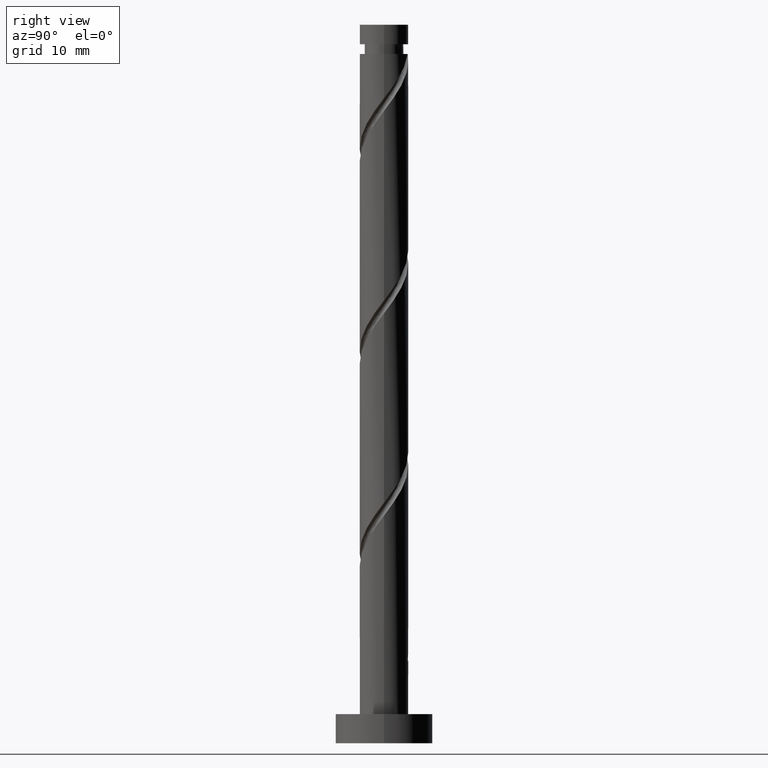
[diagram: clean part render]
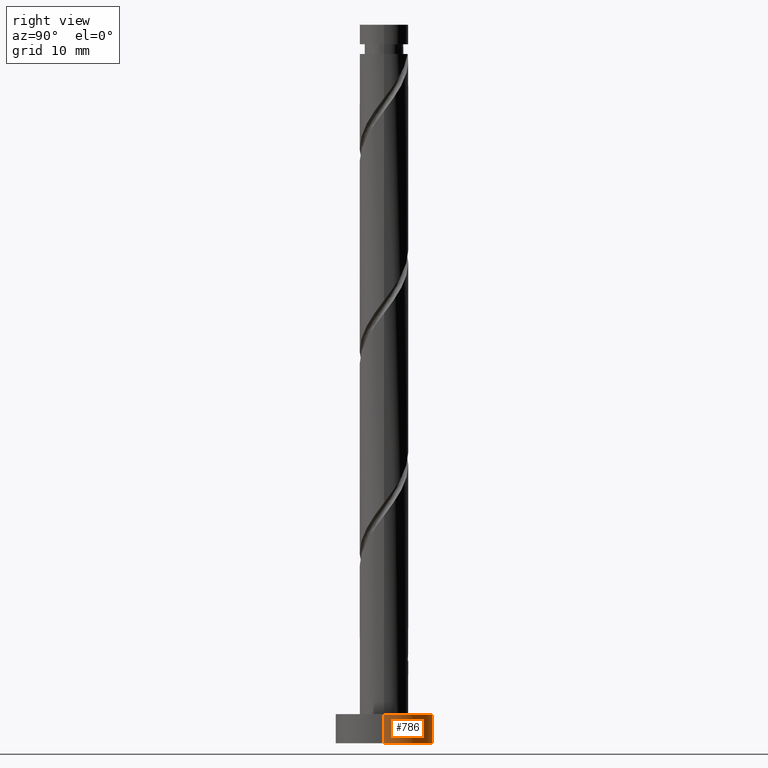
[diagram: same view with one face highlighted and labeled with its STEP entity id]
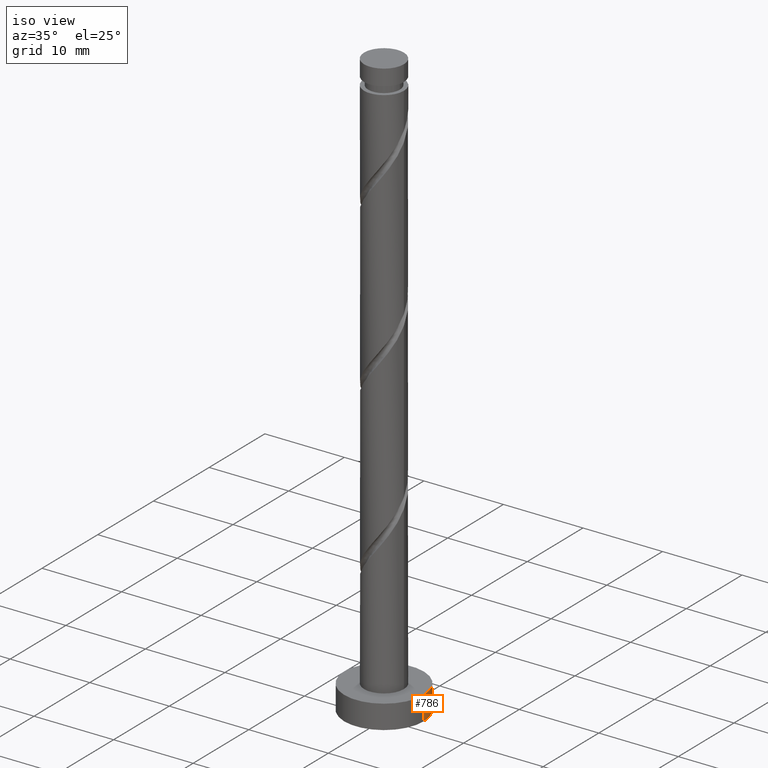
[diagram: same view with one face highlighted and labeled with its STEP entity id]
A machine part, right view. The second image highlights one B-rep face of the part: STEP entity #786.
A second angle (iso view) of the same face is appended — the face is thin or edge-on in the first view.
In plain terms, the highlighted cylindrical surface (partial cylindrical patch) has radius 5 mm, axis along (-0, -0, -1).
Its self-contained STEP definition (entity closure, byte-faithful):
#70 = EDGE_CURVE ( 'NONE', #1524, #1382, #835, .T. ) ;
#97 = DIRECTION ( 'NONE',  ( -0.000000000000000000, -0.000000000000000000, -1.000000000000000000 ) ) ;
#106 = AXIS2_PLACEMENT_3D ( 'NONE', #324, #1293, #1073 ) ;
#116 = VECTOR ( 'NONE', #702, 1000.000000000000000 ) ;
#118 = ORIENTED_EDGE ( 'NONE', *, *, #70, .F. ) ;
#163 = DIRECTION ( 'NONE',  ( -0.000000000000000000, -0.000000000000000000, -1.000000000000000000 ) ) ;
#231 = CARTESIAN_POINT ( 'NONE',  ( 0.000000000000000000, 0.000000000000000000, 3.000000000000000000 ) ) ;
#255 = EDGE_CURVE ( 'NONE', #1524, #718, #519, .T. ) ;
#324 = CARTESIAN_POINT ( 'NONE',  ( 0.000000000000000000, 0.000000000000000000, 3.000000000000000000 ) ) ;
#383 = CARTESIAN_POINT ( 'NONE',  ( 5.000000000000000000, 6.123233995736766282E-16, 3.000000000000000000 ) ) ;
#462 = CARTESIAN_POINT ( 'NONE',  ( -5.000000000000000000, 0.000000000000000000, 3.000000000000000000 ) ) ;
#482 = ORIENTED_EDGE ( 'NONE', *, *, #900, .T. ) ;
#519 = LINE ( 'NONE', #383, #1531 ) ;
#611 = CARTESIAN_POINT ( 'NONE',  ( 0.000000000000000000, 0.000000000000000000, 0.000000000000000000 ) ) ;
#634 = CARTESIAN_POINT ( 'NONE',  ( -5.000000000000000000, 0.000000000000000000, 0.000000000000000000 ) ) ;
#690 = EDGE_CURVE ( 'NONE', #1382, #1009, #721, .T. ) ;
#702 = DIRECTION ( 'NONE',  ( -0.000000000000000000, -0.000000000000000000, -1.000000000000000000 ) ) ;
#718 = VERTEX_POINT ( 'NONE', #1555 ) ;
#721 = LINE ( 'NONE', #1425, #116 ) ;
#762 = DIRECTION ( 'NONE',  ( 1.000000000000000000, 0.000000000000000000, 0.000000000000000000 ) ) ;
#786 = ADVANCED_FACE ( 'NONE', ( #1566 ), #1181, .T. ) ;
#824 = DIRECTION ( 'NONE',  ( -1.000000000000000000, 0.000000000000000000, 0.000000000000000000 ) ) ;
#835 = CIRCLE ( 'NONE', #106, 5.000000000000000000 ) ;
#871 = DIRECTION ( 'NONE',  ( 0.000000000000000000, 0.000000000000000000, 1.000000000000000000 ) ) ;
#900 = EDGE_CURVE ( 'NONE', #718, #1009, #1190, .T. ) ;
#987 = AXIS2_PLACEMENT_3D ( 'NONE', #231, #97, #824 ) ;
#1000 = ORIENTED_EDGE ( 'NONE', *, *, #690, .F. ) ;
#1009 = VERTEX_POINT ( 'NONE', #634 ) ;
#1073 = DIRECTION ( 'NONE',  ( 1.000000000000000000, 0.000000000000000000, 0.000000000000000000 ) ) ;
#1092 = EDGE_LOOP ( 'NONE', ( #118, #1399, #482, #1000 ) ) ;
#1181 = CYLINDRICAL_SURFACE ( 'NONE', #987, 5.000000000000000000 ) ;
#1190 = CIRCLE ( 'NONE', #1394, 5.000000000000000000 ) ;
#1293 = DIRECTION ( 'NONE',  ( 0.000000000000000000, 0.000000000000000000, 1.000000000000000000 ) ) ;
#1382 = VERTEX_POINT ( 'NONE', #462 ) ;
#1394 = AXIS2_PLACEMENT_3D ( 'NONE', #611, #871, #762 ) ;
#1399 = ORIENTED_EDGE ( 'NONE', *, *, #255, .T. ) ;
#1425 = CARTESIAN_POINT ( 'NONE',  ( -5.000000000000000000, 0.000000000000000000, 3.000000000000000000 ) ) ;
#1471 = CARTESIAN_POINT ( 'NONE',  ( 5.000000000000000000, 6.123233995736766282E-16, 3.000000000000000000 ) ) ;
#1524 = VERTEX_POINT ( 'NONE', #1471 ) ;
#1531 = VECTOR ( 'NONE', #163, 1000.000000000000000 ) ;
#1555 = CARTESIAN_POINT ( 'NONE',  ( 5.000000000000000000, 6.123233995736766282E-16, 0.000000000000000000 ) ) ;
#1566 = FACE_OUTER_BOUND ( 'NONE', #1092, .T. ) ;